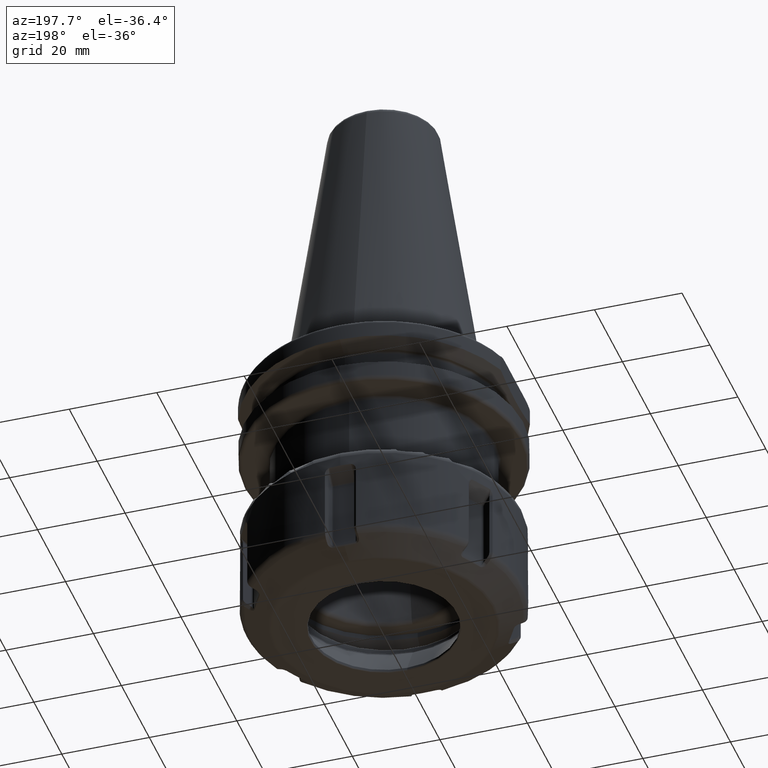
[diagram: clean part render]
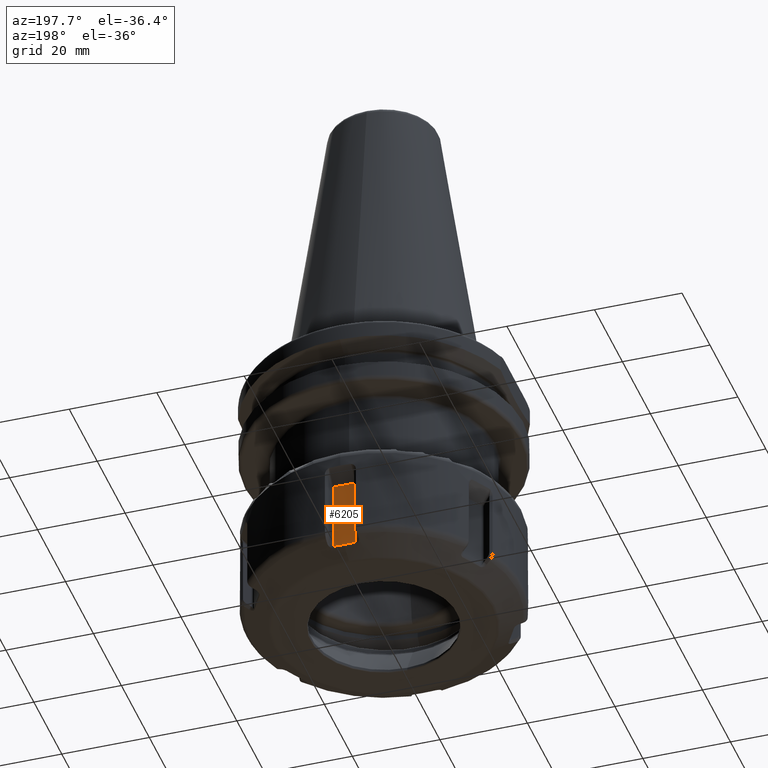
[diagram: same view with one face highlighted and labeled with its STEP entity id]
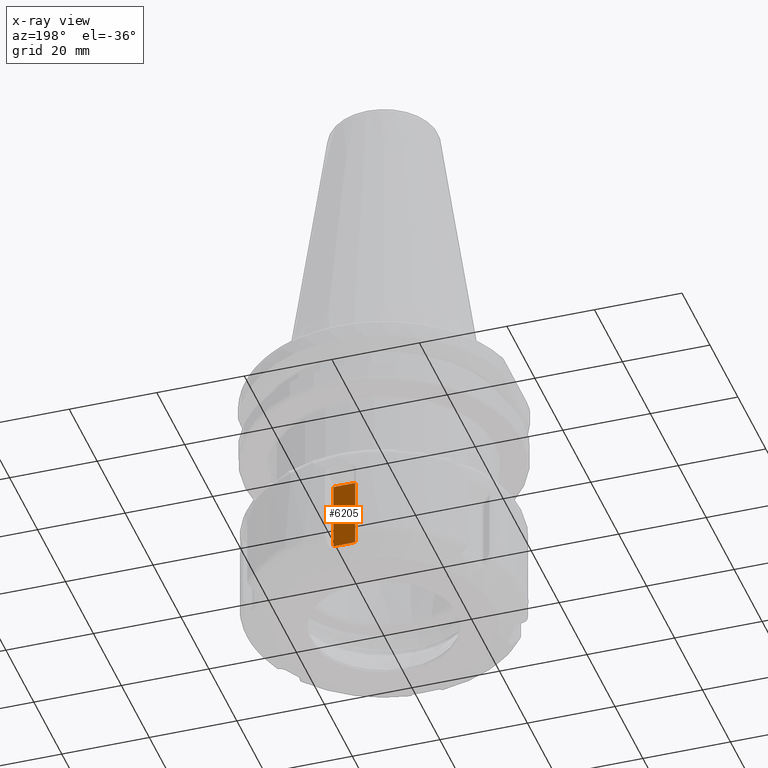
[diagram: x-ray of the same camera — body ghosted, the highlighted face saturated]
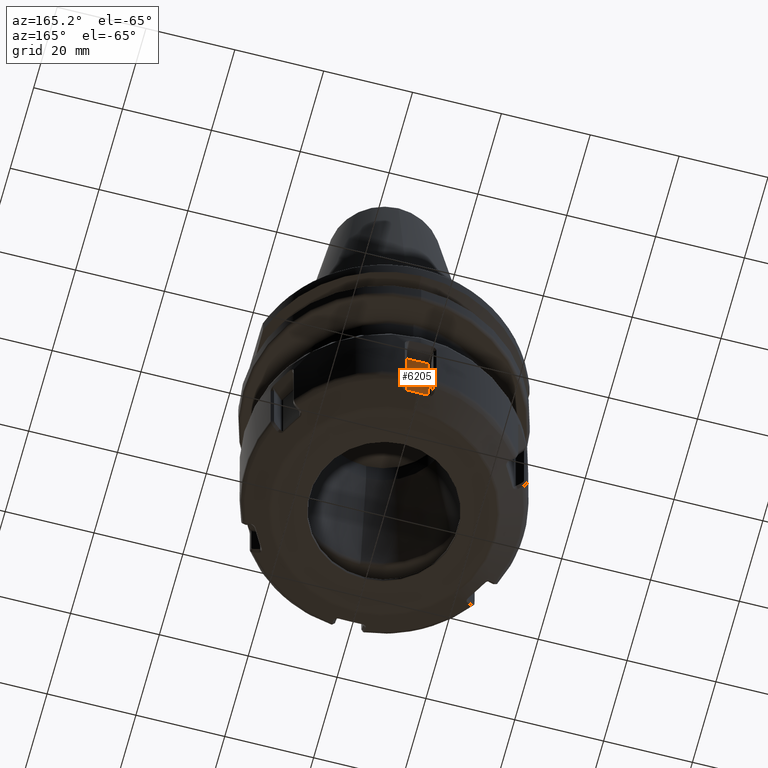
[diagram: same view with one face highlighted and labeled with its STEP entity id]
A machine part, auxiliary view. The second image highlights one B-rep face of the part: STEP entity #6205.
The next image is the same camera in x-ray: the body ghosted, the highlighted face saturated — about 0% of this face is hidden behind the body in this view.
A second angle (auxiliary view) of the same face is appended — the face is thin or edge-on in the first view.
In plain terms, the highlighted planar face has unit normal (0, -1, 0).
Its self-contained STEP definition (entity closure, byte-faithful):
#1354=CARTESIAN_POINT('',(-2.499999999266,28.45,-41.52029819019));
#1356=CARTESIAN_POINT('',(-2.499999999266,28.45,-41.52029819019));
#1357=CARTESIAN_POINT('',(-2.222950491374,28.45,-41.53470061188));
#1358=CARTESIAN_POINT('',(-1.668619752195,28.45,-41.55877235424));
#1359=CARTESIAN_POINT('',(-0.8356671015986,28.45,-41.58054606857));
#1360=CARTESIAN_POINT('',(-0.2788867308411,28.45,-41.58541621389));
#1361=CARTESIAN_POINT('',(0,28.45,-41.58541743770));
#1363=CARTESIAN_POINT('',(0,28.45,-41.58541743770));
#1364=CARTESIAN_POINT('',(0.2782817863070,28.45,-41.58541625929));
#1365=CARTESIAN_POINT('',(0.8342553573997,28.45,-41.58056716480));
#1366=CARTESIAN_POINT('',(1.667207698427,28.44999999999,-41.55882493578));
#1367=CARTESIAN_POINT('',(2.222345235552,28.45000000001,-41.53473214281));
#1368=CARTESIAN_POINT('',(2.499999998191,28.45000000001,-41.52029819032));
#1370=DIRECTION('',(-0.0000000001129475113581,0.0000000000007019703813265,-1));
#1371=VECTOR('',#1370,16.01319140913);
#1372=CARTESIAN_POINT('',(2.5,28.45,-25.50710678119));
#1373=LINE('',#1372,#1371);
#1374=DIRECTION('',(1,0,0));
#1375=VECTOR('',#1374,5);
#1376=CARTESIAN_POINT('',(-2.5,28.45,-25.50710678119));
#1377=LINE('',#1376,#1375);
#1378=DIRECTION('',(-0.00000000004585456783750,-0.0000000000001799298290962,1));
#1379=VECTOR('',#1378,16.01319140900);
#1380=CARTESIAN_POINT('',(-2.499999999266,28.45,-41.52029819019));
#1381=LINE('',#1380,#1379);
#3474=CARTESIAN_POINT('',(-2.5,28.45,-25.50710678119));
#3475=CARTESIAN_POINT('',(2.5,28.45,-25.50710678119));
#3476=VERTEX_POINT('',#3474);
#3477=VERTEX_POINT('',#3475);
#3485=VERTEX_POINT('',#1354);
#3486=VERTEX_POINT('',#1361);
#3487=VERTEX_POINT('',#1368);
#6191=CARTESIAN_POINT('',(-3,28.45,-50.4));
#6192=DIRECTION('',(0,-1,0));
#6193=DIRECTION('',(1,0,0));
#6194=AXIS2_PLACEMENT_3D('',#6191,#6192,#6193);
#6195=PLANE('',#6194);
#6196=ORIENTED_EDGE('',*,*,#5131,.T.);
#6197=ORIENTED_EDGE('',*,*,#5175,.T.);
#6199=ORIENTED_EDGE('',*,*,#6198,.F.);
#6201=ORIENTED_EDGE('',*,*,#6200,.F.);
#6202=ORIENTED_EDGE('',*,*,#6182,.F.);
#6203=EDGE_LOOP('',(#6196,#6197,#6199,#6201,#6202));
#6204=FACE_OUTER_BOUND('',#6203,.F.);
#6205=ADVANCED_FACE('',(#6204),#6195,.F.);
#1362=B_SPLINE_CURVE_WITH_KNOTS('',3,(#1356,#1357,#1358,#1359,#1360,#1361),
.UNSPECIFIED.,.F.,.F.,(4,1,1,4),(0,0.3333333333333,0.6666666666667,1),
.UNSPECIFIED.);
#1369=B_SPLINE_CURVE_WITH_KNOTS('',3,(#1363,#1364,#1365,#1366,#1367,#1368),
.UNSPECIFIED.,.F.,.F.,(4,1,1,4),(0,0.3333333333333,0.6666666666667,1),
.UNSPECIFIED.);
#5131=EDGE_CURVE('',#3485,#3486,#1362,.T.);
#5175=EDGE_CURVE('',#3486,#3487,#1369,.T.);
#6182=EDGE_CURVE('',#3485,#3476,#1381,.T.);
#6198=EDGE_CURVE('',#3477,#3487,#1373,.T.);
#6200=EDGE_CURVE('',#3476,#3477,#1377,.T.);